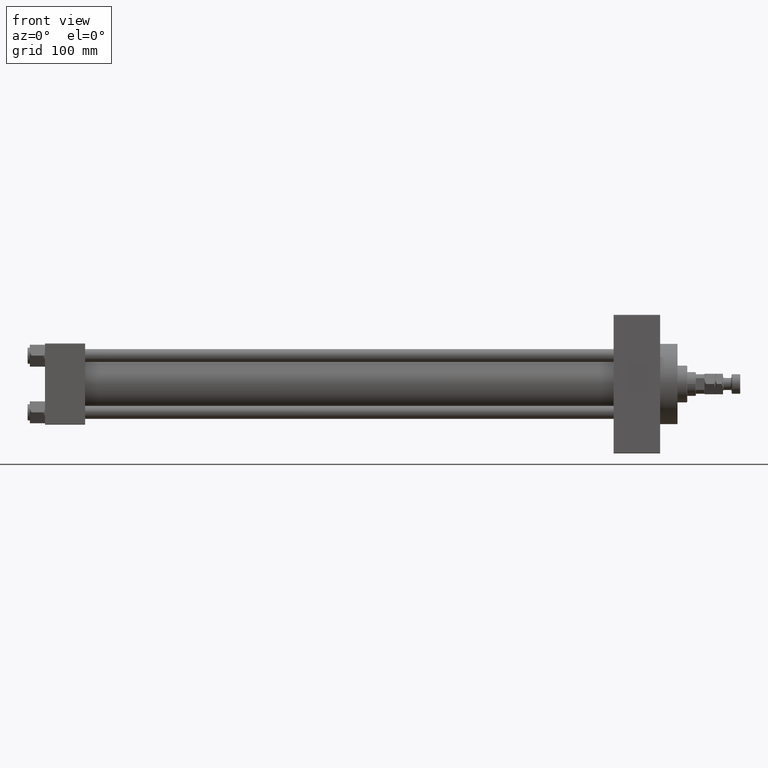
[diagram: clean part render]
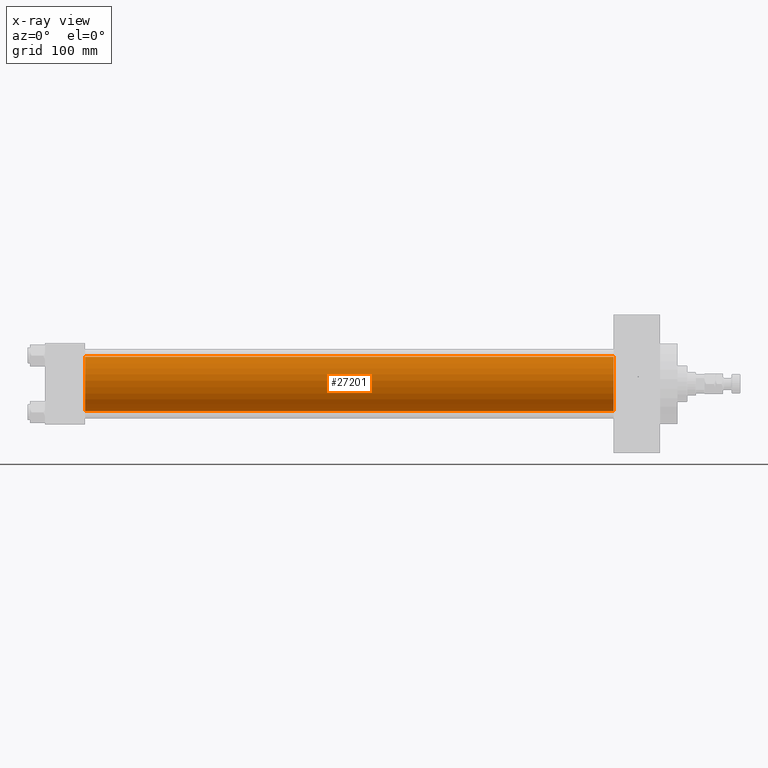
[diagram: x-ray — body ghosted, one internal face saturated and labeled with its STEP entity id]
A machine part, front view, then the same camera in x-ray: the body is ghosted and one INTERNAL B-rep face — a face not visible from any outside direction — is saturated and labeled: STEP entity #27201.
In plain terms, the highlighted cylindrical surface (edge-blend (fillet) strip) has radius 25 mm, axis along (-1, -0, -0).
Its self-contained STEP definition (entity closure, byte-faithful):
#721 = CARTESIAN_POINT ( 'NONE',  ( 525.0000000000000000, -2.602085213965210642E-15, 25.00000000000000000 ) ) ;
#1345 = VERTEX_POINT ( 'NONE', #16554 ) ;
#1673 = LINE ( 'NONE', #17372, #37524 ) ;
#8403 = FACE_OUTER_BOUND ( 'NONE', #15389, .T. ) ;
#9167 = DIRECTION ( 'NONE',  ( -1.000000000000000000, -0.000000000000000000, -0.000000000000000000 ) ) ;
#10154 = AXIS2_PLACEMENT_3D ( 'NONE', #32256, #33285, #41290 ) ;
#11566 = VERTEX_POINT ( 'NONE', #46424 ) ;
#12355 = CARTESIAN_POINT ( 'NONE',  ( 37.00000000000000000, -2.602085213965210642E-15, 0.000000000000000000 ) ) ;
#12514 = DIRECTION ( 'NONE',  ( 0.000000000000000000, 0.000000000000000000, 1.000000000000000000 ) ) ;
#14861 = CARTESIAN_POINT ( 'NONE',  ( 37.00000000000000000, -2.602085213965210642E-15, 25.00000000000000000 ) ) ;
#15389 = EDGE_LOOP ( 'NONE', ( #35182, #23674, #24527, #21095 ) ) ;
#16103 = EDGE_CURVE ( 'NONE', #27903, #1345, #48462, .T. ) ;
#16554 = CARTESIAN_POINT ( 'NONE',  ( 37.00000000000000000, 4.595317839031718093E-16, -25.00000000000000000 ) ) ;
#17372 = CARTESIAN_POINT ( 'NONE',  ( 525.0000000000000000, -2.602085213965210642E-15, 25.00000000000000000 ) ) ;
#17907 = VECTOR ( 'NONE', #25415, 1000.000000000000000 ) ;
#19576 = DIRECTION ( 'NONE',  ( 0.000000000000000000, 0.000000000000000000, -1.000000000000000000 ) ) ;
#21095 = ORIENTED_EDGE ( 'NONE', *, *, #30079, .F. ) ;
#23674 = ORIENTED_EDGE ( 'NONE', *, *, #33357, .T. ) ;
#23807 = EDGE_CURVE ( 'NONE', #35724, #11566, #42200, .T. ) ;
#24527 = ORIENTED_EDGE ( 'NONE', *, *, #16103, .F. ) ;
#25158 = LINE ( 'NONE', #40349, #17907 ) ;
#25366 = DIRECTION ( 'NONE',  ( -1.000000000000000000, -0.000000000000000000, -0.000000000000000000 ) ) ;
#25415 = DIRECTION ( 'NONE',  ( -1.000000000000000000, -0.000000000000000000, -0.000000000000000000 ) ) ;
#26237 = AXIS2_PLACEMENT_3D ( 'NONE', #12355, #47372, #19576 ) ;
#26708 = AXIS2_PLACEMENT_3D ( 'NONE', #48048, #9167, #12514 ) ;
#27201 = ADVANCED_FACE ( 'NONE', ( #8403 ), #47790, .F. ) ;
#27903 = VERTEX_POINT ( 'NONE', #14861 ) ;
#30079 = EDGE_CURVE ( 'NONE', #35724, #27903, #1673, .T. ) ;
#32256 = CARTESIAN_POINT ( 'NONE',  ( 525.0000000000000000, -2.602085213965210642E-15, 0.000000000000000000 ) ) ;
#33285 = DIRECTION ( 'NONE',  ( 1.000000000000000000, 0.000000000000000000, 0.000000000000000000 ) ) ;
#33357 = EDGE_CURVE ( 'NONE', #11566, #1345, #25158, .T. ) ;
#35182 = ORIENTED_EDGE ( 'NONE', *, *, #23807, .T. ) ;
#35724 = VERTEX_POINT ( 'NONE', #721 ) ;
#37524 = VECTOR ( 'NONE', #25366, 1000.000000000000000 ) ;
#40349 = CARTESIAN_POINT ( 'NONE',  ( 525.0000000000000000, 4.595317839031718093E-16, -25.00000000000000000 ) ) ;
#41290 = DIRECTION ( 'NONE',  ( 0.000000000000000000, 0.000000000000000000, -1.000000000000000000 ) ) ;
#42200 = CIRCLE ( 'NONE', #10154, 25.00000000000000000 ) ;
#46424 = CARTESIAN_POINT ( 'NONE',  ( 525.0000000000000000, 4.595317839031718093E-16, -25.00000000000000000 ) ) ;
#47372 = DIRECTION ( 'NONE',  ( 1.000000000000000000, 0.000000000000000000, 0.000000000000000000 ) ) ;
#47790 = CYLINDRICAL_SURFACE ( 'NONE', #26708, 25.00000000000000000 ) ;
#48048 = CARTESIAN_POINT ( 'NONE',  ( 525.0000000000000000, -2.602085213965210642E-15, 0.000000000000000000 ) ) ;
#48462 = CIRCLE ( 'NONE', #26237, 25.00000000000000000 ) ;